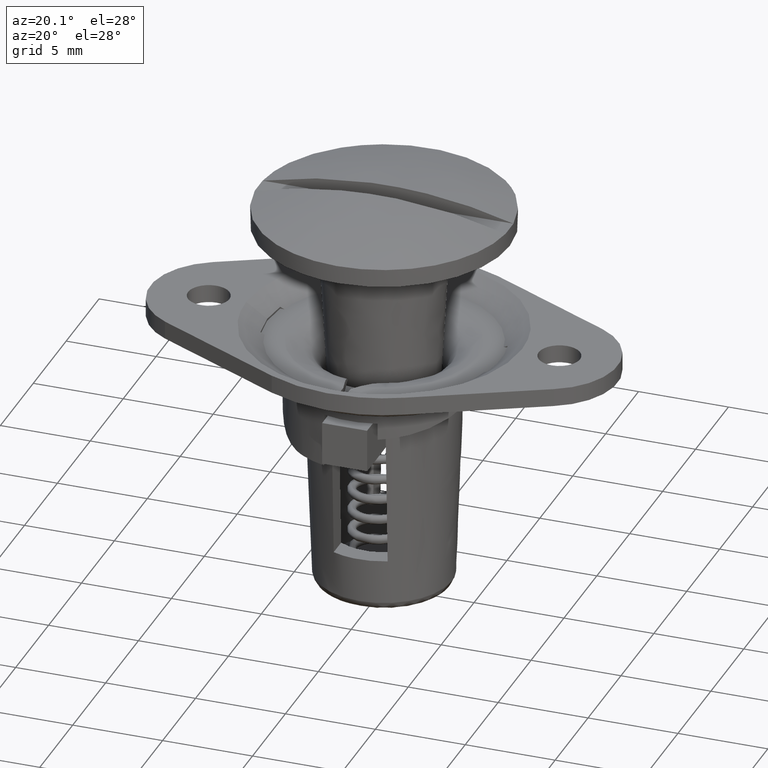
[diagram: clean part render]
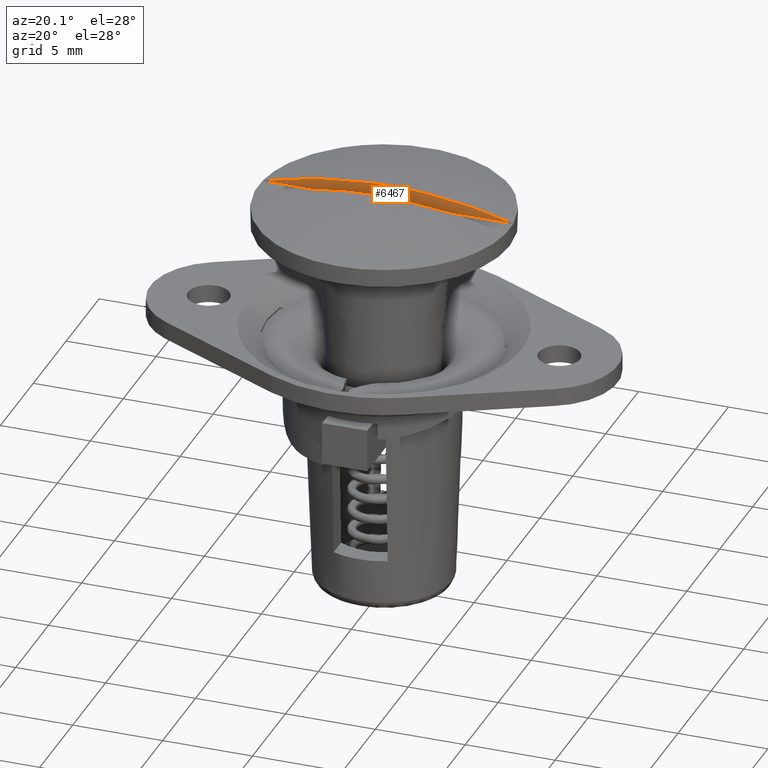
[diagram: same view with one face highlighted and labeled with its STEP entity id]
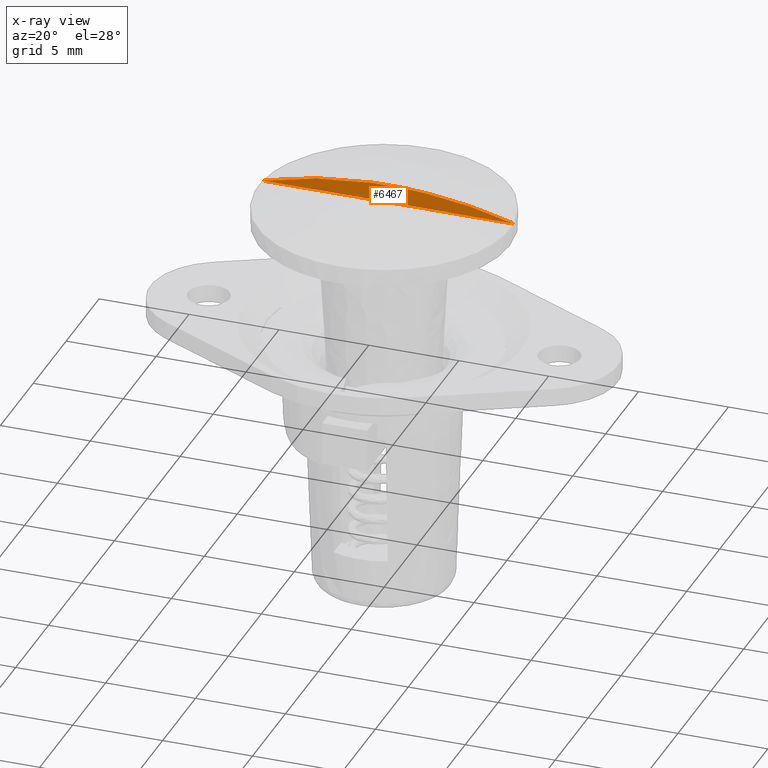
[diagram: x-ray of the same camera — body ghosted, the highlighted face saturated]
A machine part, auxiliary view. The second image highlights one B-rep face of the part: STEP entity #6467.
The next image is the same camera in x-ray: the body ghosted, the highlighted face saturated — about 0% of this face is hidden behind the body in this view.
In plain terms, the highlighted face is a freeform B-spline surface patch.
Its self-contained STEP definition (entity closure, byte-faithful):
#5769=CARTESIAN_POINT('',(-6.974238309665040,0.599999999999909,0.0));
#5770=VERTEX_POINT('',#5769);
#5860=CARTESIAN_POINT('',(6.974238309665070,0.599999999999909,-1.734723E-015));
#5861=VERTEX_POINT('',#5860);
#6444=CARTESIAN_POINT('',(-7.670964820704042,0.599999999999909,1.042367200156743));
#6445=CARTESIAN_POINT('',(-7.670964820704042,0.599999999999909,-0.049589282996955));
#6446=CARTESIAN_POINT('',(7.670965070122274,0.599999999999909,1.042367200156743));
#6447=CARTESIAN_POINT('',(7.670965070122274,0.599999999999909,-0.049589282996955));
#6448=B_SPLINE_SURFACE_WITH_KNOTS('',1,1,((#6444,#6446),(#6445,#6447)),.UNSPECIFIED.,.F.,.F.,.U.,(2,2),(2,2),(0.041726859189942,0.958290806136653),(0.0,15.341929890826320),.UNSPECIFIED.);
#6449=CARTESIAN_POINT('',(-6.974238309665040,0.599999999999909,0.0));
#6450=CARTESIAN_POINT('',(6.974238309665070,0.599999999999909,-1.734723E-015));
#6451=QUASI_UNIFORM_CURVE('',1,(#6449,#6450),.UNSPECIFIED.,.F.,.U.);
#6452=EDGE_CURVE('',#5770,#5861,#6451,.T.);
#6453=ORIENTED_EDGE('',*,*,#6452,.T.);
#6454=CARTESIAN_POINT('',(-6.974238309665040,0.599999999999909,0.0));
#6455=CARTESIAN_POINT('',(-5.984430359451165,0.599999999999909,0.287667130363119));
#6456=CARTESIAN_POINT('',(-4.077117246866155,0.599999999999909,0.716002133428756));
#6457=CARTESIAN_POINT('',(-0.923453995569712,0.599999999999908,1.044725405992737));
#6458=CARTESIAN_POINT('',(1.733335564538686,0.599999999999910,0.980147168283801));
#6459=CARTESIAN_POINT('',(4.472973278995458,0.599999999999908,0.627084827209914));
#6460=CARTESIAN_POINT('',(5.984430685655923,0.599999999999910,0.287670793901536));
#6461=CARTESIAN_POINT('',(6.974238309665070,0.599999999999909,-1.734723E-015));
#6462=B_SPLINE_CURVE_WITH_KNOTS('',3,(#6454,#6455,#6456,#6457,#6458,#6459,#6460,#6461),.UNSPECIFIED.,.F.,.U.,(4,1,1,1,1,4),(1.236010E-009,3.092286422330588,5.853260585226568,9.497736829271144,11.043880862836639,14.136167283931369),.UNSPECIFIED.);
#6463=EDGE_CURVE('',#5770,#5861,#6462,.T.);
#6464=ORIENTED_EDGE('',*,*,#6463,.F.);
#6465=EDGE_LOOP('',(#6453,#6464));
#6466=FACE_OUTER_BOUND('',#6465,.T.);
#6467=ADVANCED_FACE('',(#6466),#6448,.T.);